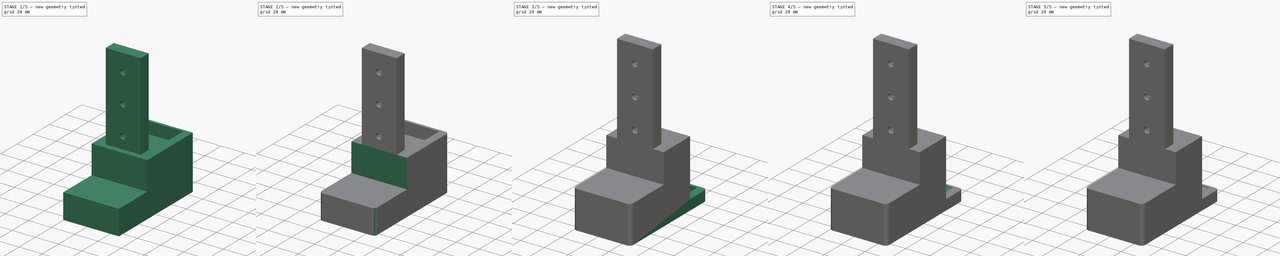
[diagram: build sequence overview — one tinted view per stage of 5, left to right]
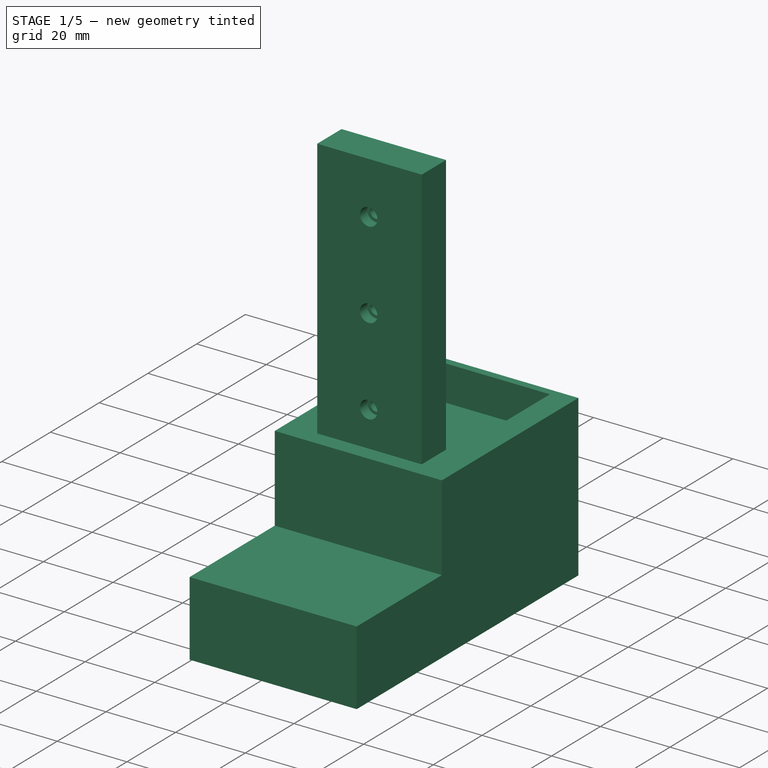
[diagram: stage 1 of 5 — iso view after this stage's code; geometry added in this stage tinted green]
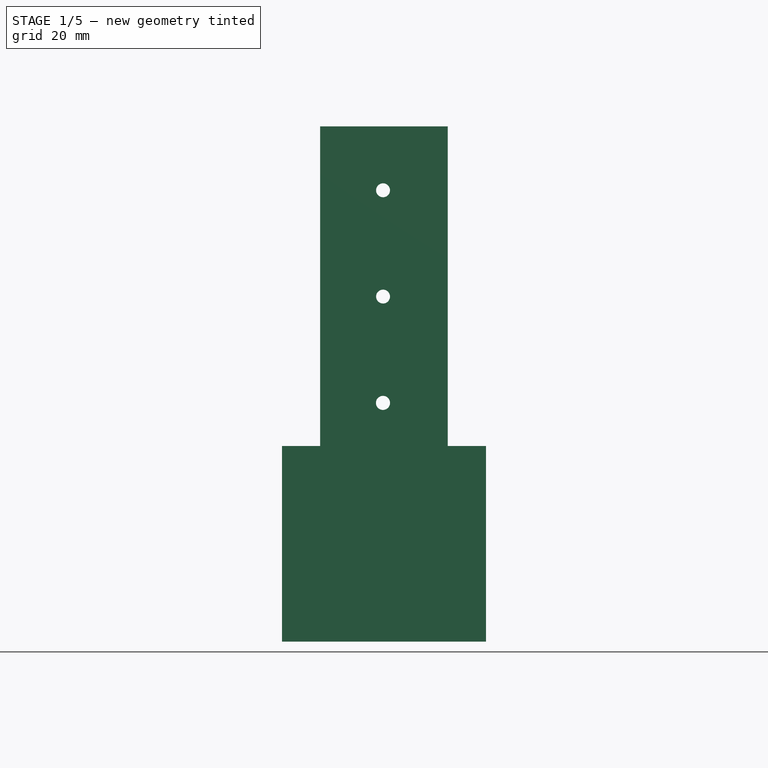
[diagram: stage 1 of 5 — front view after this stage's code; geometry added in this stage tinted green]
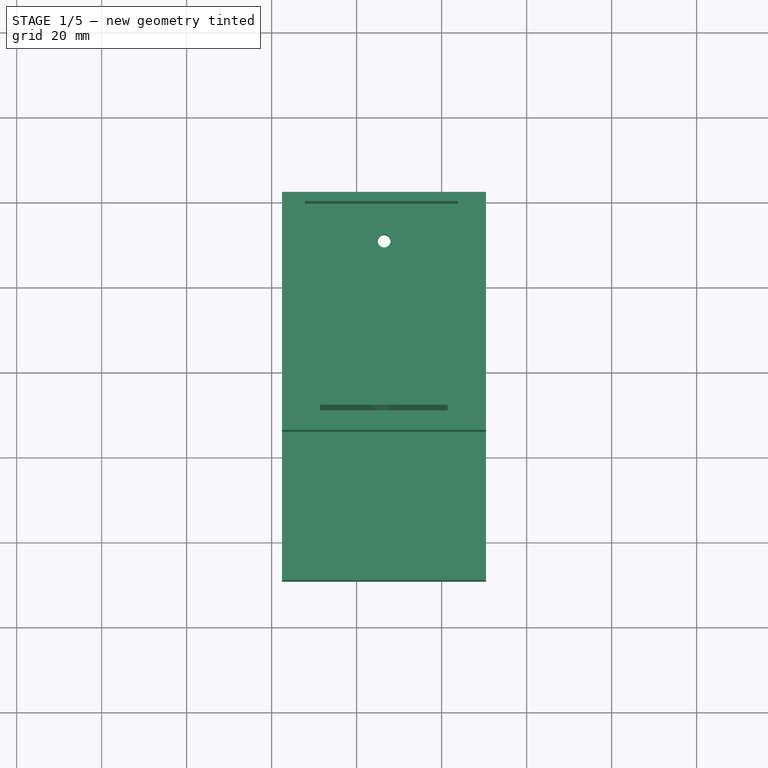
[diagram: stage 1 of 5 — top view after this stage's code; geometry added in this stage tinted green]
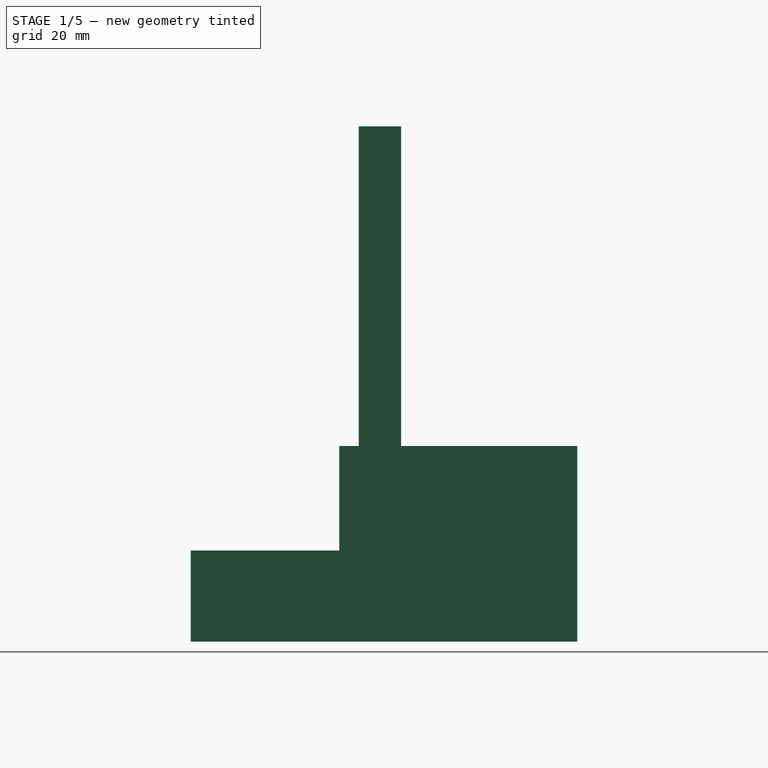
[diagram: stage 1 of 5 — right view after this stage's code; geometry added in this stage tinted green]
FCSTD DOCUMENT  (FreeCAD 2024.2R37179 (Git))
Label: Tensioner_extension
License: All rights reserved
LicenseURL: http://en.wikipedia.org/wiki/All_rights_reserved
objects: PartDesign::Pocket×12, Sketcher::SketchObject×8, PartDesign::Pad×5, PartDesign::Fillet×2, Part::Feature×1, PartDesign::FeatureBase×1, PartDesign::Body×1
note: 49 computed .brp shape members not serialized (recipe doc carries the construction recipe); baked Part::Feature solids carry a one-line shape summary decoded from their .brp

FEATURE [Part::Feature] Hole001
  Placement = pos=(0,0,0) rot=(1,0,0;1.5708rad)
  shape: bbox 48 x 121.3 x 51.42 mm, 25 faces (baked)
FEATURE [PartDesign::FeatureBase] BaseFeature
  BaseFeature = -> Hole001
  Suppressed = false
FEATURE [PartDesign::Pad] Pad
  BaseFeature = -> BaseFeature
  Direction = (0,-1,3e-16)
  Length = 39.53
  Length2 = 10
  Profile = -> BaseFeature [Face1]
  Suppressed = false
  Type = 0
FEATURE [PartDesign::Pocket] Pocket
  BaseFeature = -> Pad
  Direction = (0,-3e-16,-1)
  Length = 0
  Length2 = 5
  Profile = -> Pad [Face22]
  Suppressed = false
  Type = 3
  UpToFace = -> Pad [Face9]
FEATURE [Sketcher::SketchObject] Sketch
  FullyConstrained = false
  MapMode = 5
  Placement = pos=(482.437,0,0) rot=(0.57735,-0.57735,-0.57735;2.0944rad)
  sketch-geometry (4):
    g0: LineSegment StartX=330.804 StartY=124.686 StartZ=0 EndX=254.242 EndY=124.686 EndZ=0
    g1: LineSegment StartX=254.242 StartY=124.686 StartZ=0 EndX=254.242 EndY=64.4323 EndZ=0
    g2: LineSegment StartX=254.242 StartY=64.4323 StartZ=0 EndX=330.804 EndY=64.4323 EndZ=0
    g3: LineSegment StartX=330.804 StartY=64.4323 StartZ=0 EndX=330.804 EndY=124.686 EndZ=0
  constraints (8):
    c: Coincident(g0,g1)
    c: Coincident(g1,g2)
    c: Coincident(g2,g3)
    c: Coincident(g3,g0)
    c: Horizontal(g0)
    c: Horizontal(g2)
    c: Vertical(g1)
    c: Vertical(g3)
FEATURE [PartDesign::Pocket] Pocket001
  BaseFeature = -> Pocket
  Direction = (1,0,0)
  Length = 58
  Length2 = 5
  Profile = -> Sketch
  ReferenceAxis = -> Sketch [N_Axis]
  Suppressed = false
  Type = 0
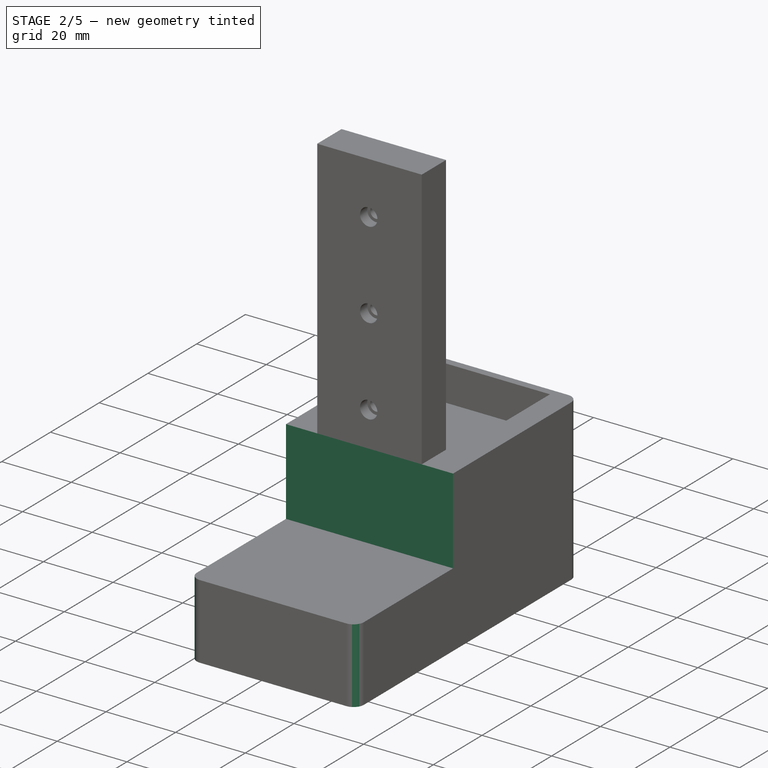
[diagram: stage 2 of 5 — iso view after this stage's code; geometry added in this stage tinted green]
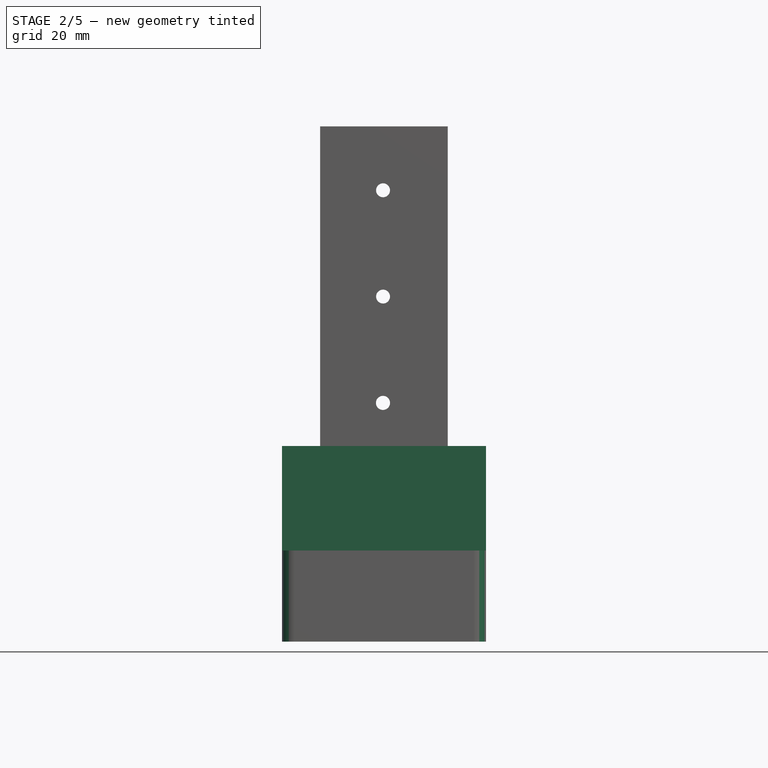
[diagram: stage 2 of 5 — front view after this stage's code; geometry added in this stage tinted green]
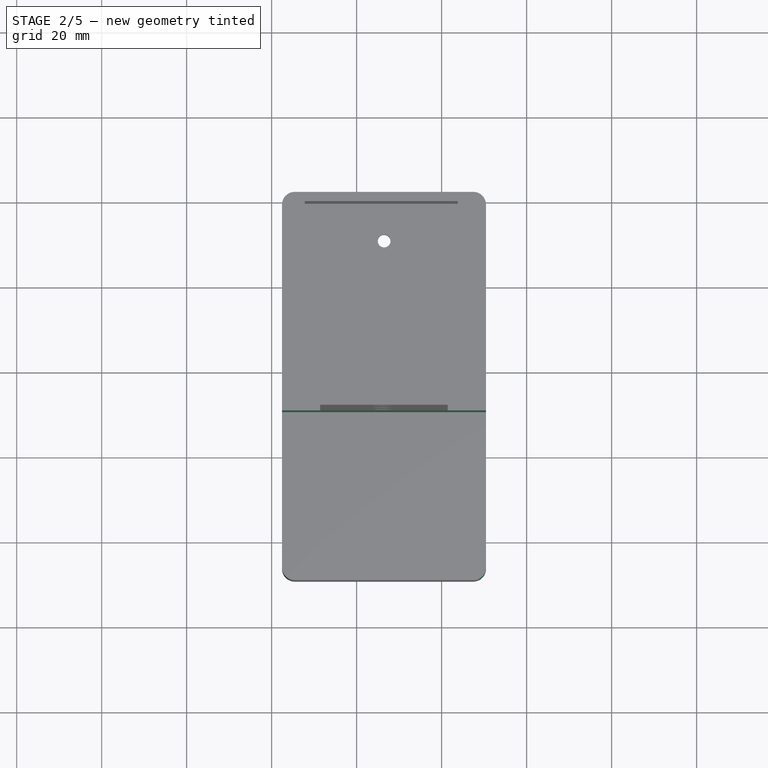
[diagram: stage 2 of 5 — top view after this stage's code; geometry added in this stage tinted green]
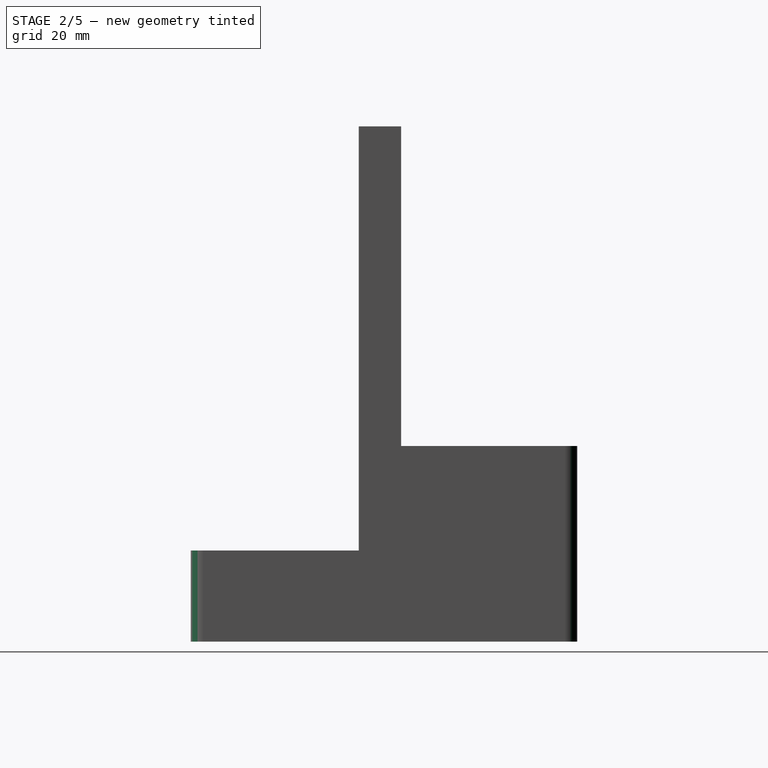
[diagram: stage 2 of 5 — right view after this stage's code; geometry added in this stage tinted green]
FEATURE [PartDesign::Pocket] Pocket002
  BaseFeature = -> Pocket001
  Direction = (0,1,0)
  Length = 0
  Length2 = 5
  Profile = -> Pocket001 [Face11]
  Suppressed = false
  Type = 3
  UpToFace = -> Pocket001 [Face25]
FEATURE [Sketcher::SketchObject] Sketch001
  FullyConstrained = false
  MapMode = 5
  Placement = pos=(0,3.4e-14,42.9702) rot=(1,0,0;3.14159rad)
  sketch-geometry (1):
    g0: Circle CenterX=506.488 CenterY=209.167 CenterZ=0 NormalX=0 NormalY=0 NormalZ=1 AngleXU=0 Radius=2.5
  constraints (1):
    c: Diameter(g0) = 5
FEATURE [PartDesign::Pocket] Pocket003
  BaseFeature = -> Pocket002
  Direction = (0,0,1)
  Length = 4
  Length2 = 5
  Profile = -> Sketch001
  ReferenceAxis = -> Sketch001 [N_Axis]
  Refine = true
  Suppressed = false
  Type = 0
FEATURE [PartDesign::Fillet] Fillet
  Base = -> Pocket003 [Edge61,Edge57]
  BaseFeature = -> Pocket003
  Radius = 3
  Refine = true
  SupportTransform = false
  Suppressed = false
  UseAllEdges = false
FEATURE [PartDesign::Fillet] Fillet001
  Base = -> Fillet [Edge15,Edge3]
  BaseFeature = -> Fillet
  Radius = 3
  Refine = true
  SupportTransform = false
  Suppressed = false
  UseAllEdges = false
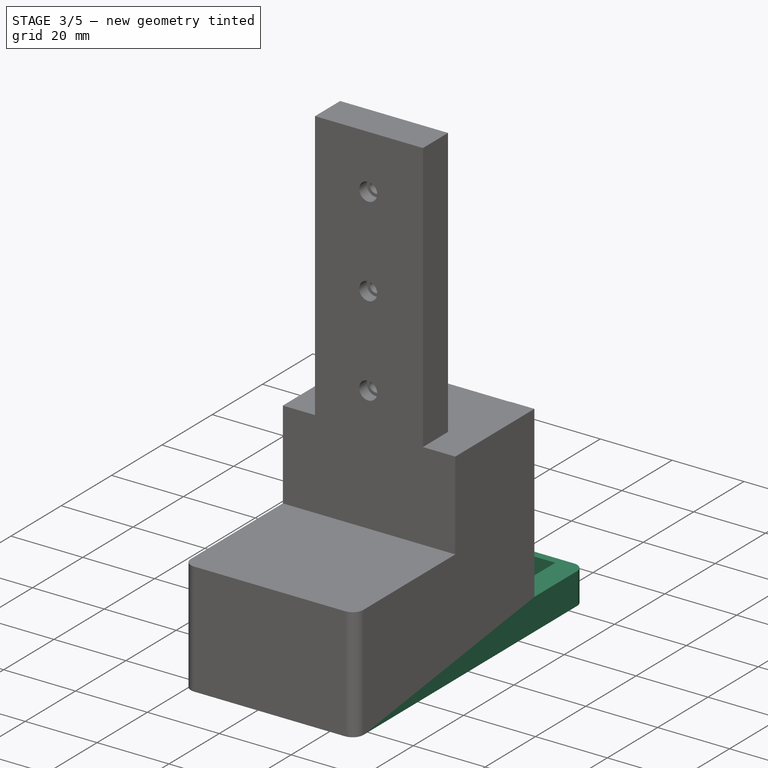
[diagram: stage 3 of 5 — iso view after this stage's code; geometry added in this stage tinted green]
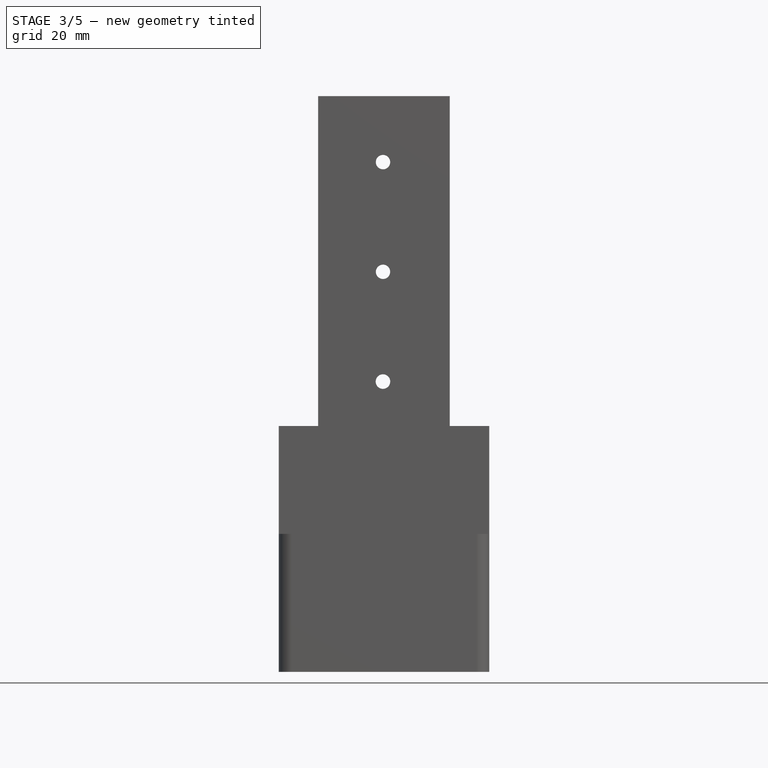
[diagram: stage 3 of 5 — front view after this stage's code; geometry added in this stage tinted green]
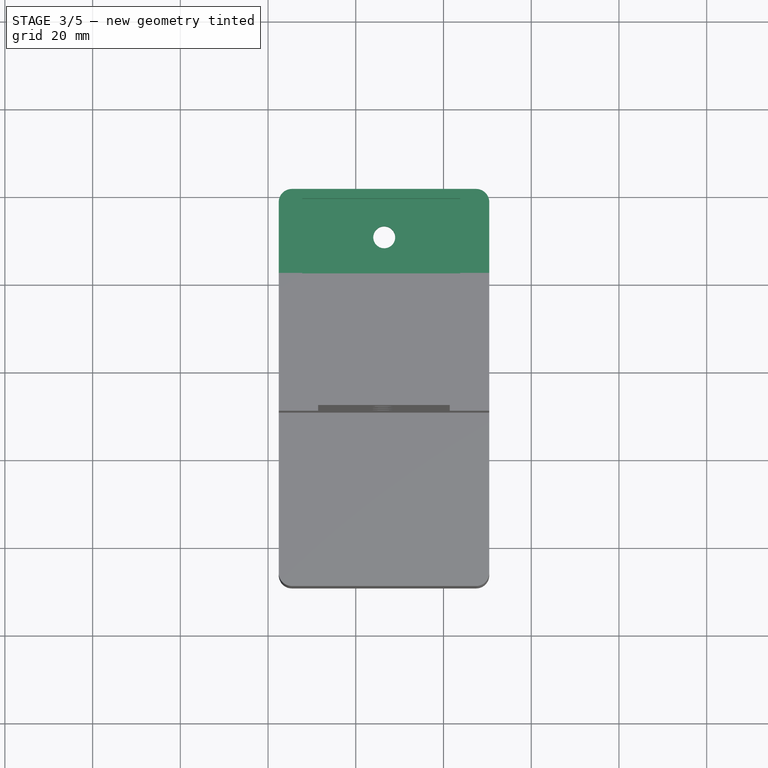
[diagram: stage 3 of 5 — top view after this stage's code; geometry added in this stage tinted green]
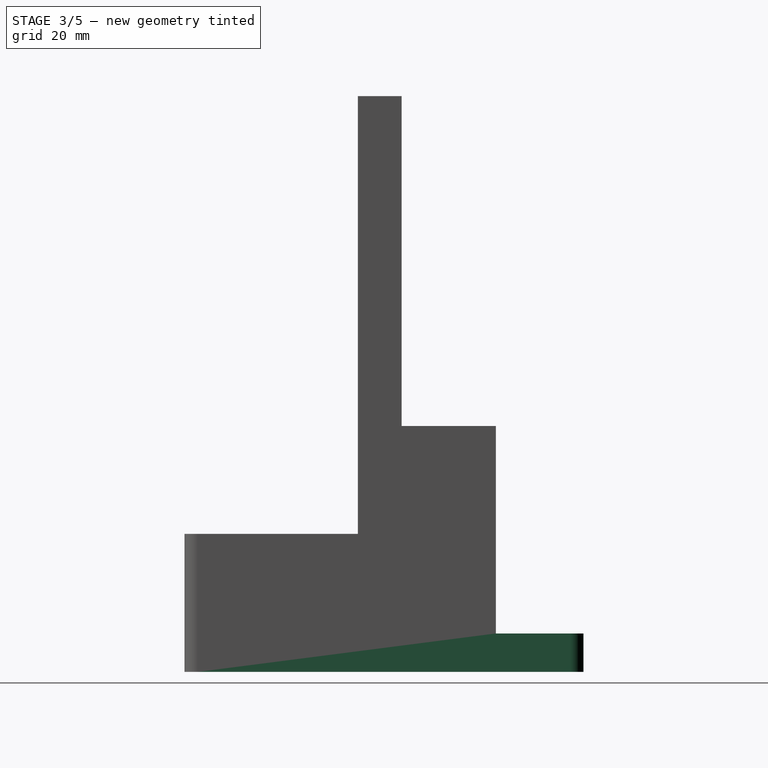
[diagram: stage 3 of 5 — right view after this stage's code; geometry added in this stage tinted green]
FEATURE [Sketcher::SketchObject] Sketch003
  AttachmentSupport = -> [Fillet001]
  FullyConstrained = false
  MapMode = 5
  Placement = pos=(530.437,-4.721e-13,-1.8035e-12) rot=(0.57735,0.57735,0.57735;2.0944rad)
  sketch-geometry (4):
    g0: LineSegment StartX=-172.337 StartY=112.217 StartZ=0 EndX=-218.191 EndY=112.217 EndZ=0
    g1: LineSegment StartX=-218.191 StartY=112.217 StartZ=0 EndX=-218.191 EndY=55.7352 EndZ=0
    g2: LineSegment StartX=-218.191 StartY=55.7352 StartZ=0 EndX=-172.337 EndY=55.7352 EndZ=0
    g3: LineSegment StartX=-172.337 StartY=55.7352 StartZ=0 EndX=-172.337 EndY=112.217 EndZ=0
  constraints (8):
    c: Coincident(g0,g1)
    c: Coincident(g1,g2)
    c: Coincident(g2,g3)
    c: Coincident(g3,g0)
    c: Horizontal(g0)
    c: Horizontal(g2)
    c: Vertical(g1)
    c: Vertical(g3)
FEATURE [PartDesign::Pocket] Pocket004
  BaseFeature = -> Fillet001
  Direction = (-1,-1e-16,3.2e-15)
  Length = 61
  Length2 = 5
  Profile = -> Sketch003
  ReferenceAxis = -> Sketch003 [N_Axis]
  Refine = true
  Suppressed = false
  Type = 0
FEATURE [PartDesign::Pad] Pad001
  BaseFeature = -> Pocket004
  Direction = (0,-8e-16,-1)
  Length = 10
  Length2 = 10
  Profile = -> Pocket004 [Face9]
  Refine = true
  Suppressed = false
  Type = 0
FEATURE [PartDesign::Pocket] Pocket005
  BaseFeature = -> Pad001
  Direction = (0,3e-16,-1)
  Length = 16
  Length2 = 5
  Profile = -> Pad001 [Face20]
  Refine = true
  Suppressed = false
  Type = 0
FEATURE [PartDesign::Pocket] Pocket006
  BaseFeature = -> Pocket005
  Direction = (-3.2e-15,-1e-16,-1)
  Length = 14
  Length2 = 5
  Profile = -> Pocket005 [Face11]
  Refine = true
  Suppressed = false
  Type = 0
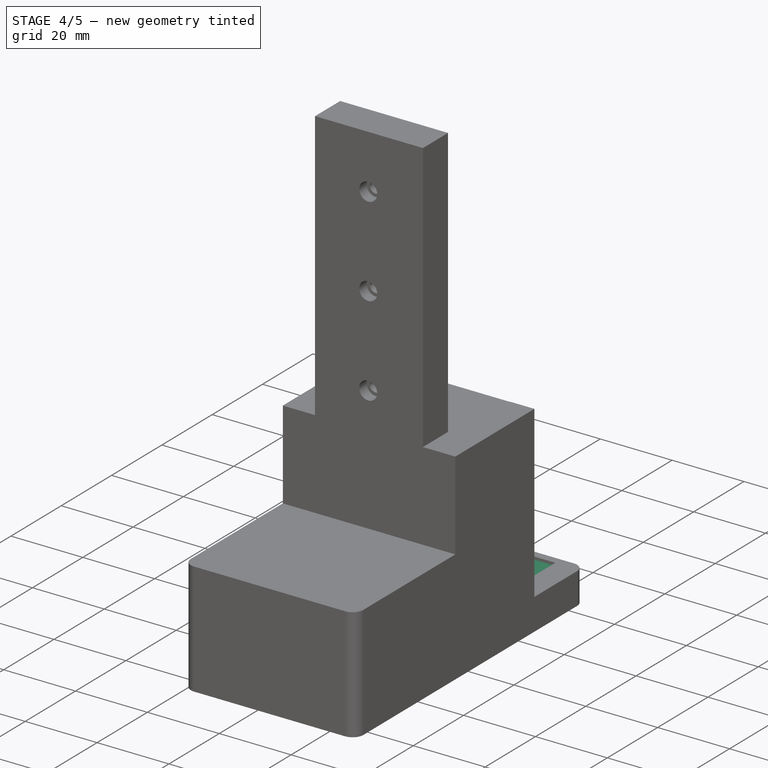
[diagram: stage 4 of 5 — iso view after this stage's code; geometry added in this stage tinted green]
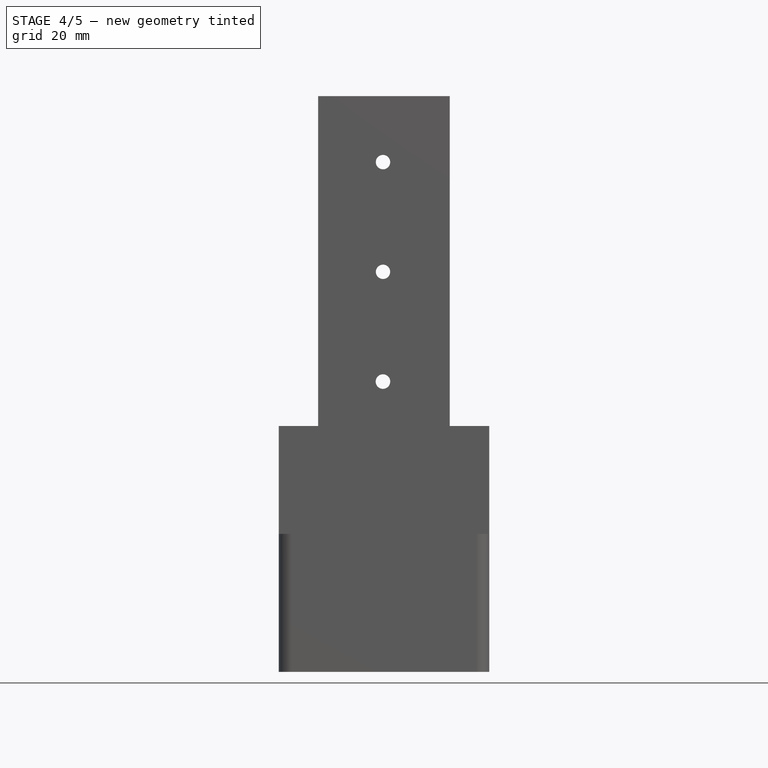
[diagram: stage 4 of 5 — front view after this stage's code; geometry added in this stage tinted green]
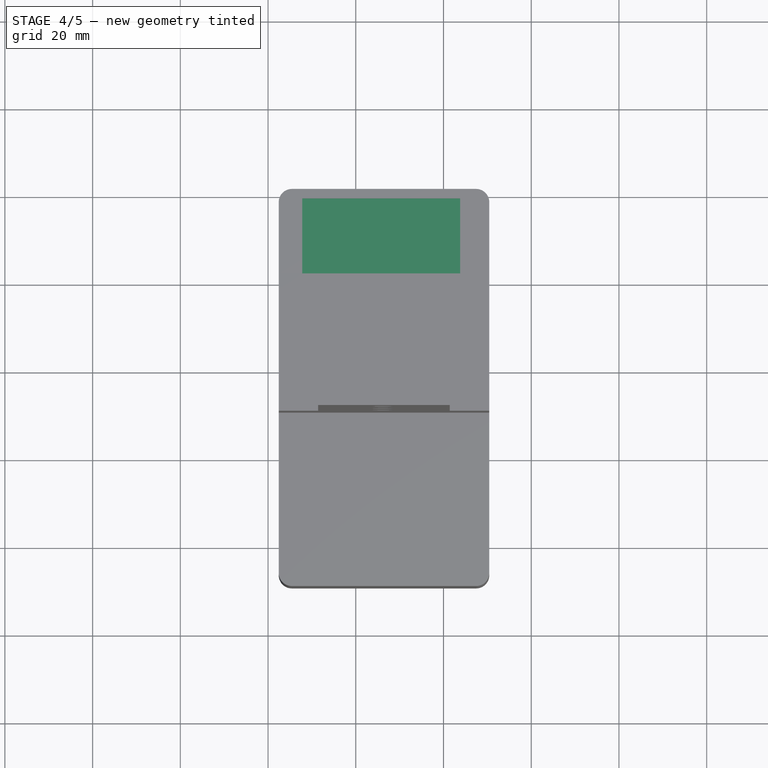
[diagram: stage 4 of 5 — top view after this stage's code; geometry added in this stage tinted green]
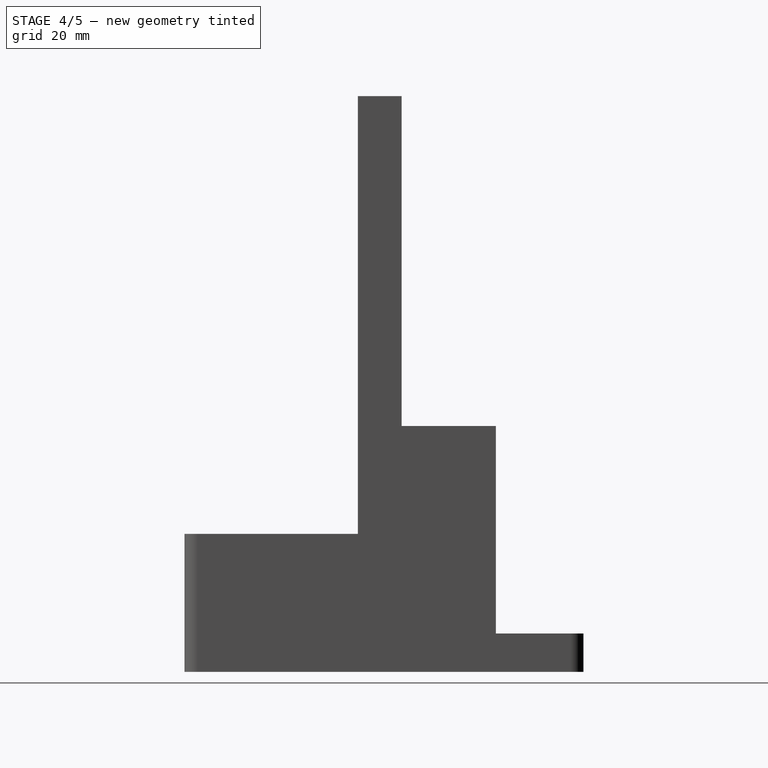
[diagram: stage 4 of 5 — right view after this stage's code; geometry added in this stage tinted green]
FEATURE [Sketcher::SketchObject] Sketch005
  AttachmentSupport = -> [Pocket006]
  FullyConstrained = false
  MapMode = 5
  Placement = pos=(0,2.7e-14,32.9702) rot=(1,0,0;3.14159rad)
  sketch-geometry (7):
    g0: LineSegment StartX=503.584 StartY=210.854 StartZ=0 EndX=503.571 EndY=207.504 EndZ=0
    g1: LineSegment StartX=503.571 StartY=207.504 StartZ=0 EndX=506.466 EndY=205.818 EndZ=0
    g2: LineSegment StartX=506.466 StartY=205.818 StartZ=0 EndX=509.374 EndY=207.482 EndZ=0
    g3: LineSegment StartX=509.374 StartY=207.482 StartZ=0 EndX=509.386 EndY=210.832 EndZ=0
    g4: LineSegment StartX=509.386 StartY=210.832 StartZ=0 EndX=506.491 EndY=212.518 EndZ=0
    g5: LineSegment StartX=506.491 StartY=212.518 StartZ=0 EndX=503.584 EndY=210.854 EndZ=0
    g6: Circle CenterX=506.479 CenterY=209.168 CenterZ=0 NormalX=0 NormalY=0 NormalZ=1 AngleXU=0 Radius=3.35
  constraints (14):
    c: Coincident(g0,g1)
    c: Coincident(g1,g2)
    c: Coincident(g2,g3)
    c: Coincident(g3,g4)
    c: Coincident(g4,g5)
    c: Coincident(g5,g0)
    c: Equal(g0, g1-g5) x5
    c: PointOnObject(g0,g6)
    c: PointOnObject(g1,g6)
    c: PointOnObject(g2,g6)
    c: PointOnObject(g3,g6)
    c: PointOnObject(g4,g6)
    c: PointOnObject(g5,g6)
    c: Diameter(g6) = 6.7
FEATURE [PartDesign::Pocket] Pocket007
  BaseFeature = -> Pocket006
  Direction = (0,0,1)
  Length = 2
  Length2 = 5
  Profile = -> Sketch005
  ReferenceAxis = -> Sketch005 [N_Axis]
  Refine = true
  Suppressed = false
  Type = 0
FEATURE [PartDesign::Pad] Pad002
  BaseFeature = -> Pocket007
  Direction = (0,-3e-16,1)
  Length = 4
  Length2 = 10
  Profile = -> Pocket007 [Face41]
  Refine = true
  Suppressed = false
  Type = 0
FEATURE [PartDesign::Pocket] Pocket008
  BaseFeature = -> Pad002
  Direction = (0,0,1)
  Length = 2
  Length2 = 5
  Profile = -> Pad002 [Face22]
  Refine = true
  Suppressed = false
  Type = 0
FEATURE [Sketcher::SketchObject] Sketch008
  AttachmentSupport = -> [Pocket008]
  FullyConstrained = false
  MapMode = 5
  Placement = pos=(0,2.7e-14,32.9702) rot=(1,0,0;3.14159rad)
  sketch-geometry (4):
    g0: LineSegment StartX=502.323 StartY=212.906 StartZ=0 EndX=502.323 EndY=205.598 EndZ=0
    g1: LineSegment StartX=502.323 StartY=205.598 StartZ=0 EndX=510.748 EndY=205.598 EndZ=0
    g2: LineSegment StartX=510.748 StartY=205.598 StartZ=0 EndX=510.748 EndY=212.906 EndZ=0
    g3: LineSegment StartX=510.748 StartY=212.906 StartZ=0 EndX=502.323 EndY=212.906 EndZ=0
  constraints (8):
    c: Coincident(g0,g1)
    c: Coincident(g1,g2)
    c: Coincident(g2,g3)
    c: Coincident(g3,g0)
    c: Vertical(g0)
    c: Vertical(g2)
    c: Horizontal(g1)
    c: Horizontal(g3)
FEATURE [PartDesign::Pad] Pad007
  BaseFeature = -> Pocket008
  Direction = (0,0,-1)
  Length = 10
  Length2 = 10
  Profile = -> Sketch008
  ReferenceAxis = -> Sketch008 [N_Axis]
  Refine = true
  Suppressed = false
  Type = 3
  UpToFace = -> Pocket008 [Face35]
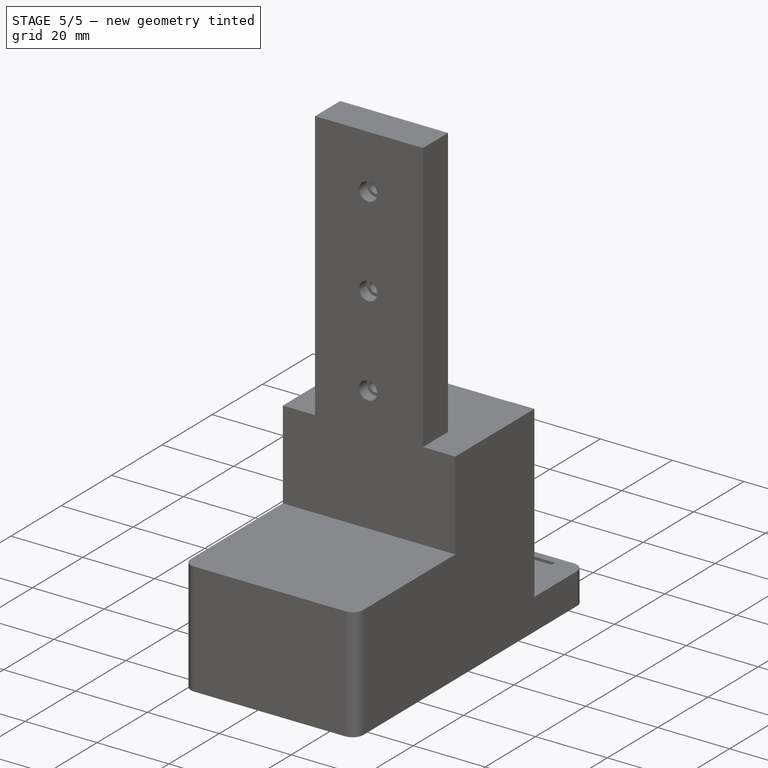
[diagram: stage 5 of 5 — iso view after this stage's code; geometry added in this stage tinted green]
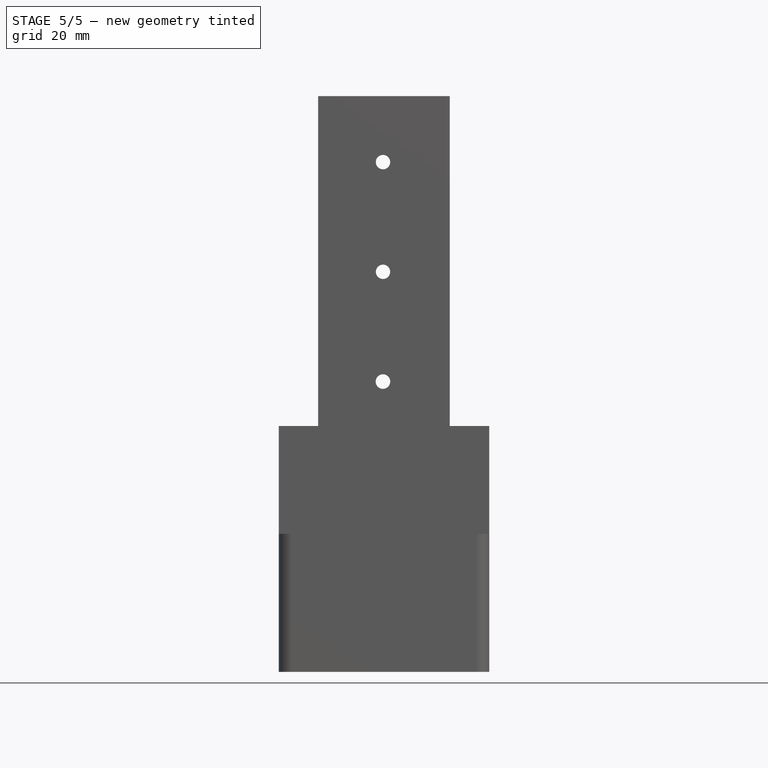
[diagram: stage 5 of 5 — front view after this stage's code; geometry added in this stage tinted green]
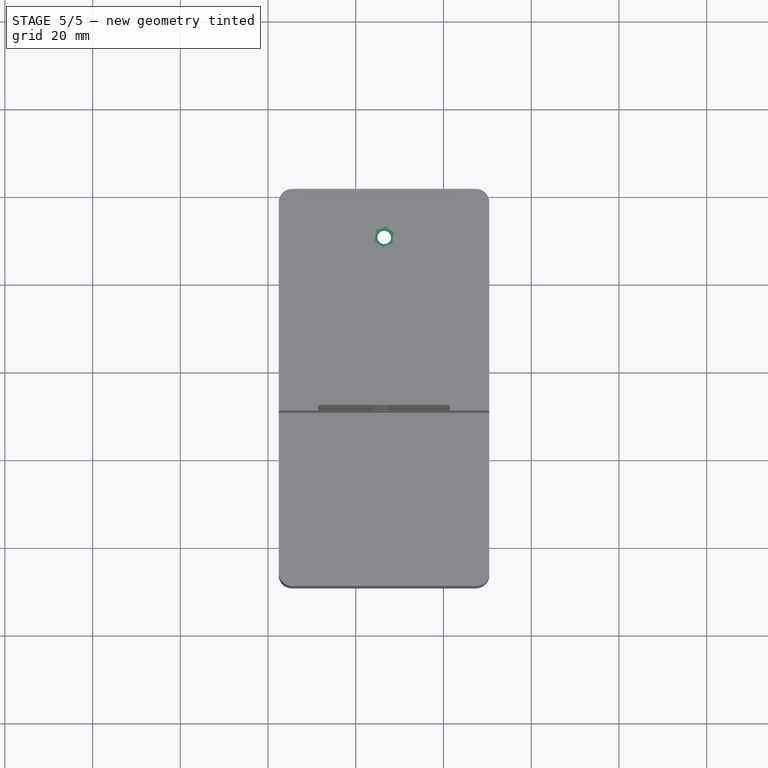
[diagram: stage 5 of 5 — top view after this stage's code; geometry added in this stage tinted green]
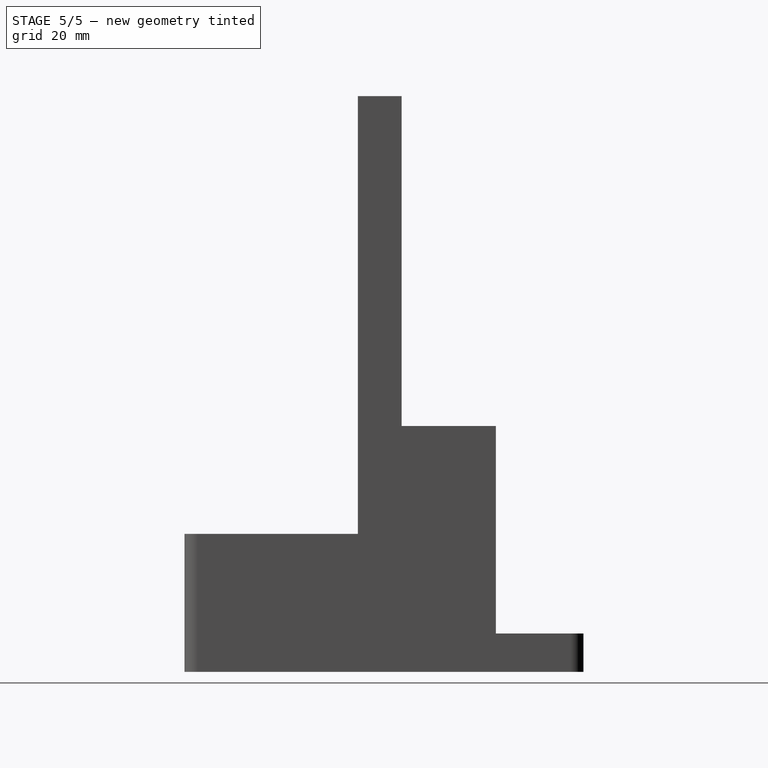
[diagram: stage 5 of 5 — right view after this stage's code; geometry added in this stage tinted green]
FEATURE [Sketcher::SketchObject] Sketch009
  AttachmentSupport = -> [Pad007]
  FullyConstrained = false
  MapMode = 5
  Placement = pos=(0,2.7e-14,32.9702) rot=(1,0,0;3.14159rad)
  sketch-geometry (8):
    g0: Circle CenterX=506.492 CenterY=209.169 CenterZ=0 NormalX=0 NormalY=0 NormalZ=1 AngleXU=0 Radius=1.55
    g1: LineSegment StartX=508.352 StartY=210.606 StartZ=0 EndX=506.177 EndY=211.498 EndZ=0
    g2: LineSegment StartX=506.177 StartY=211.498 StartZ=0 EndX=504.317 EndY=210.061 EndZ=0
    g3: LineSegment StartX=504.317 StartY=210.061 StartZ=0 EndX=504.632 EndY=207.731 EndZ=0
    g4: LineSegment StartX=504.632 StartY=207.731 StartZ=0 EndX=506.807 EndY=206.839 EndZ=0
    g5: LineSegment StartX=506.807 StartY=206.839 StartZ=0 EndX=508.667 EndY=208.277 EndZ=0
    g6: LineSegment StartX=508.667 StartY=208.277 StartZ=0 EndX=508.352 EndY=210.606 EndZ=0
    g7: Circle CenterX=506.492 CenterY=209.169 CenterZ=0 NormalX=0 NormalY=0 NormalZ=1 AngleXU=0 Radius=2.35093
  constraints (15):
    c: Diameter(g0) = 3.1
    c: Coincident(g1,g2)
    c: Coincident(g2,g3)
    c: Coincident(g3,g4)
    c: Coincident(g4,g5)
    c: Coincident(g5,g6)
    c: Coincident(g6,g1)
    c: Equal(g1, g2-g6) x5
    c: PointOnObject(g1,g7)
    c: PointOnObject(g2,g7)
    c: PointOnObject(g3,g7)
    c: PointOnObject(g4,g7)
    c: PointOnObject(g5,g7)
    c: PointOnObject(g6,g7)
    c: Coincident(g7,g0)
FEATURE [PartDesign::Pocket] Pocket014
  BaseFeature = -> Pad007
  Direction = (0,0,1)
  Length = 4
  Length2 = 5
  Profile = -> Sketch009
  ReferenceAxis = -> Sketch009 [N_Axis]
  Refine = true
  Suppressed = false
  Type = 0
FEATURE [PartDesign::Pocket] Pocket015
  BaseFeature = -> Pocket014
  Direction = (0,8e-16,1)
  Length = 10
  Length2 = 5
  Profile = -> Pocket014 [Face42]
  Refine = true
  Suppressed = false
  Type = 0
FEATURE [Sketcher::SketchObject] Sketch002
  AttachmentSupport = -> [Pocket003]
  FullyConstrained = true
  MapMode = 5
  Placement = pos=(0,-198.226,1.15e-13) rot=(0,0.707107,0.707107;3.14159rad)
FEATURE [Sketcher::SketchObject] Sketch010
  AttachmentSupport = -> [Pocket015]
  FullyConstrained = false
  MapMode = 5
  Placement = pos=(0,-1.35e-14,40.9702) rot=(0,0,1;0rad)
  sketch-geometry (7):
    g0: LineSegment StartX=506.81 StartY=-206.837 StartZ=0 EndX=504.631 EndY=-207.727 EndZ=0
    g1: LineSegment StartX=504.631 StartY=-207.727 StartZ=0 EndX=504.312 EndY=-210.059 EndZ=0
    g2: LineSegment StartX=504.312 StartY=-210.059 StartZ=0 EndX=506.172 EndY=-211.502 EndZ=0
    g3: LineSegment StartX=506.172 StartY=-211.502 StartZ=0 EndX=508.352 EndY=-210.611 EndZ=0
    g4: LineSegment StartX=508.352 StartY=-210.611 StartZ=0 EndX=508.671 EndY=-208.279 EndZ=0
    g5: LineSegment StartX=508.671 StartY=-208.279 StartZ=0 EndX=506.81 EndY=-206.837 EndZ=0
    g6: Circle CenterX=506.491 CenterY=-209.169 CenterZ=0 NormalX=0 NormalY=0 NormalZ=1 AngleXU=0 Radius=2.35406
  constraints (13):
    c: Coincident(g0,g1)
    c: Coincident(g1,g2)
    c: Coincident(g2,g3)
    c: Coincident(g3,g4)
    c: Coincident(g4,g5)
    c: Coincident(g5,g0)
    c: Equal(g0, g1-g5) x5
    c: PointOnObject(g0,g6)
    c: PointOnObject(g1,g6)
    c: PointOnObject(g2,g6)
    c: PointOnObject(g3,g6)
    c: PointOnObject(g4,g6)
    c: PointOnObject(g5,g6)
FEATURE [PartDesign::Pad] Pad008
  BaseFeature = -> Pocket015
  Direction = (0,0,-1)
  Length = 10
  Length2 = 10
  Profile = -> Pocket015 [Face40]
  Refine = true
  Suppressed = false
  Type = 3
  UpToFace = -> Pocket015 [Face9]
FEATURE [PartDesign::Pocket] Pocket016
  BaseFeature = -> Pad008
  Direction = (0,0,-1)
  Length = 4
  Length2 = 5
  Profile = -> Sketch010
  ReferenceAxis = -> Sketch010 [N_Axis]
  Refine = true
  Suppressed = false
  Type = 0
FEATURE [PartDesign::Body] Body
  BaseFeature = -> Hole001
  Group = -> [BaseFeature,Pad,Pocket,Sketch,Pocket001,Pocket002,Sketch001,Pocket003,Sketch002,Fillet,Fillet001,Sketch003,Pocket004,Pad001,Pocket005,Pocket006,Sketch005,Pocket007,Pad002,Pocket008,Sketch008,Pad007,Sketch009,Pocket014,Pocket015,Sketch010,Pad008,Pocket016]
  Origin = -> Origin
  Tip = -> Pocket016
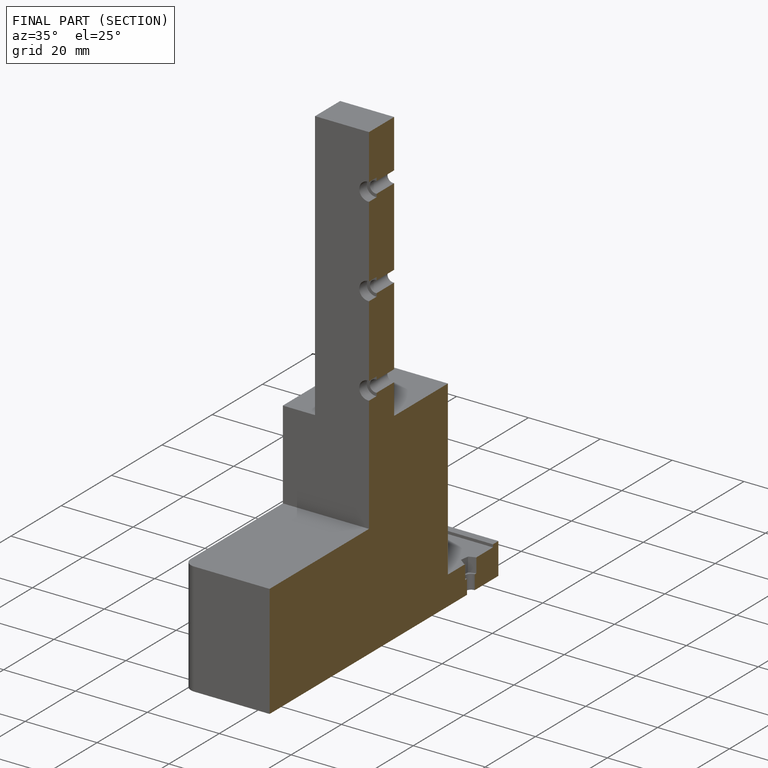
[diagram: finished part — half-section view (interior)]
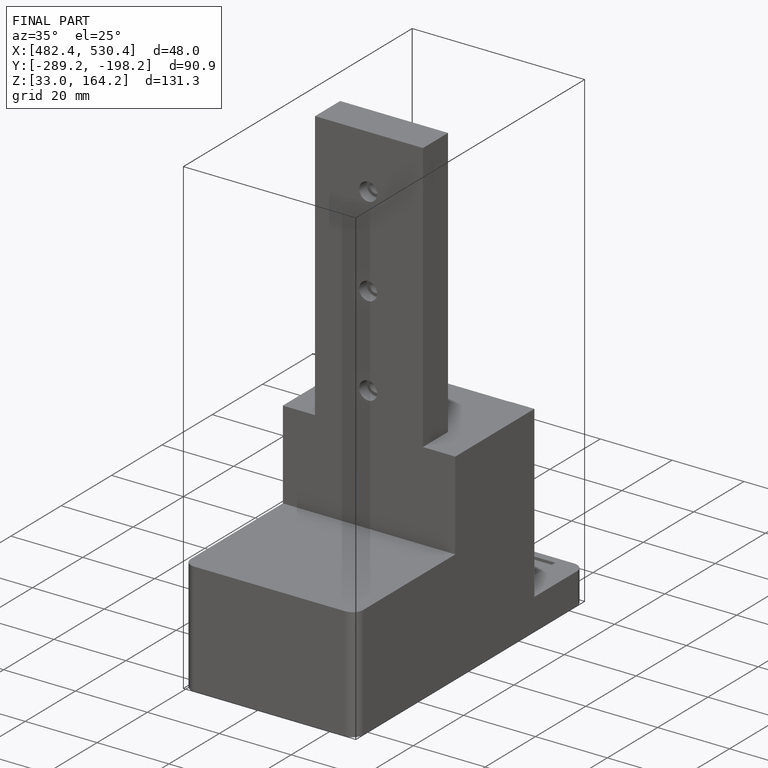
[diagram: finished part — iso view with bounding-box wireframe]
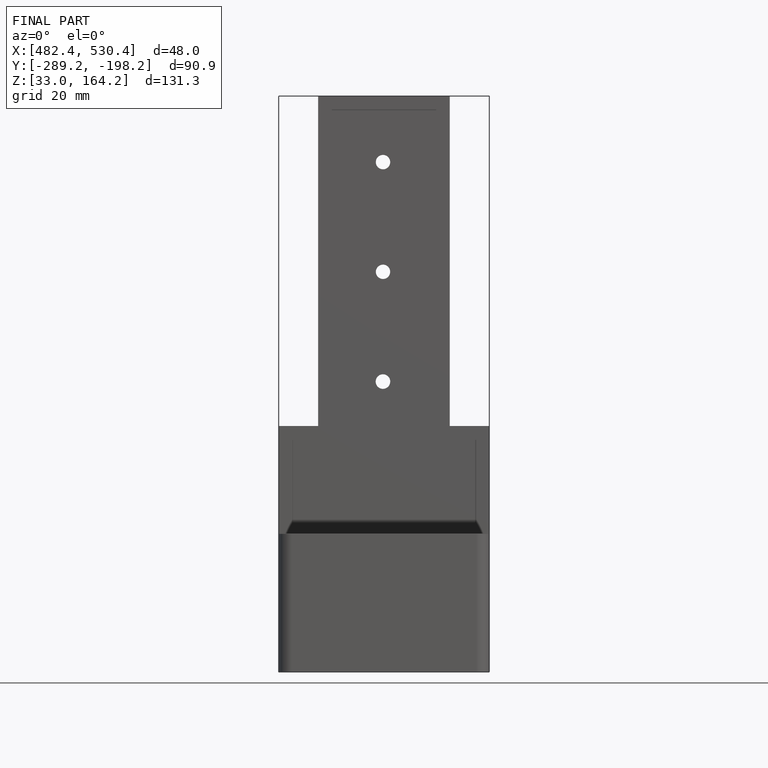
[diagram: finished part — front view with bounding-box wireframe]
